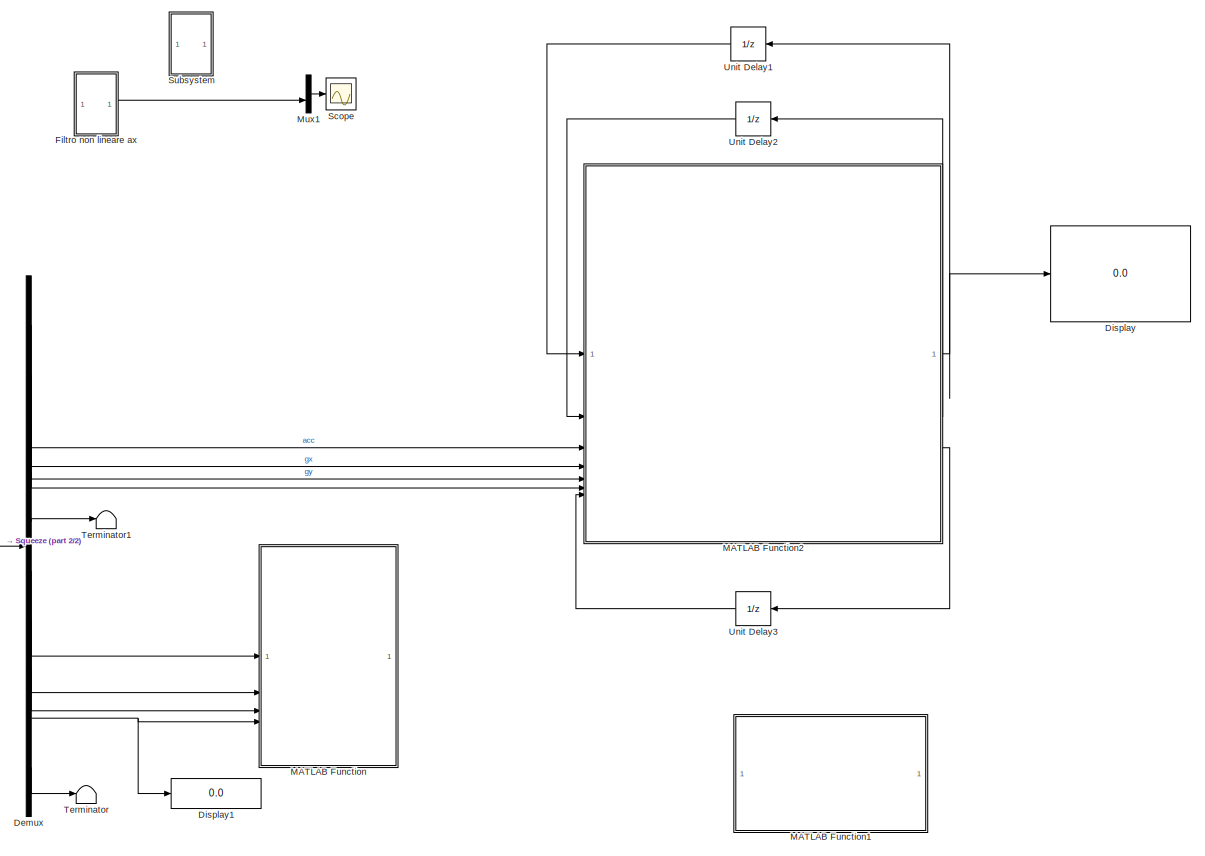
[diagram: root canvas - part 1/2, right side, full height]
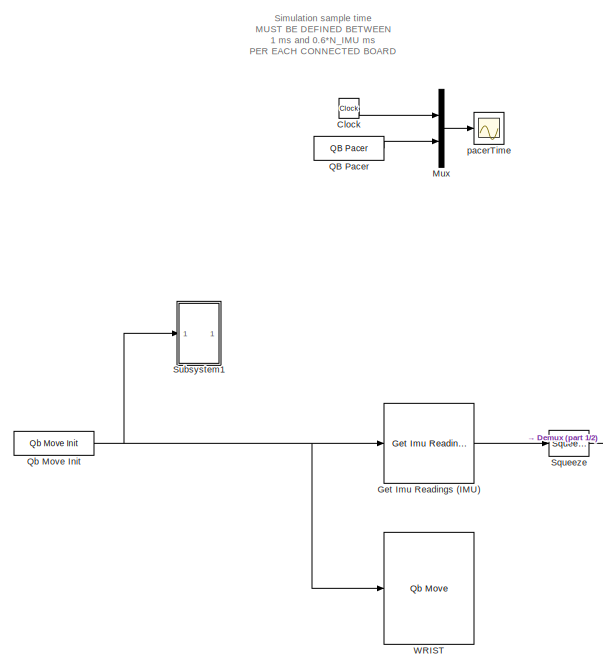
[diagram: root canvas - part 2/2, left side, full height]
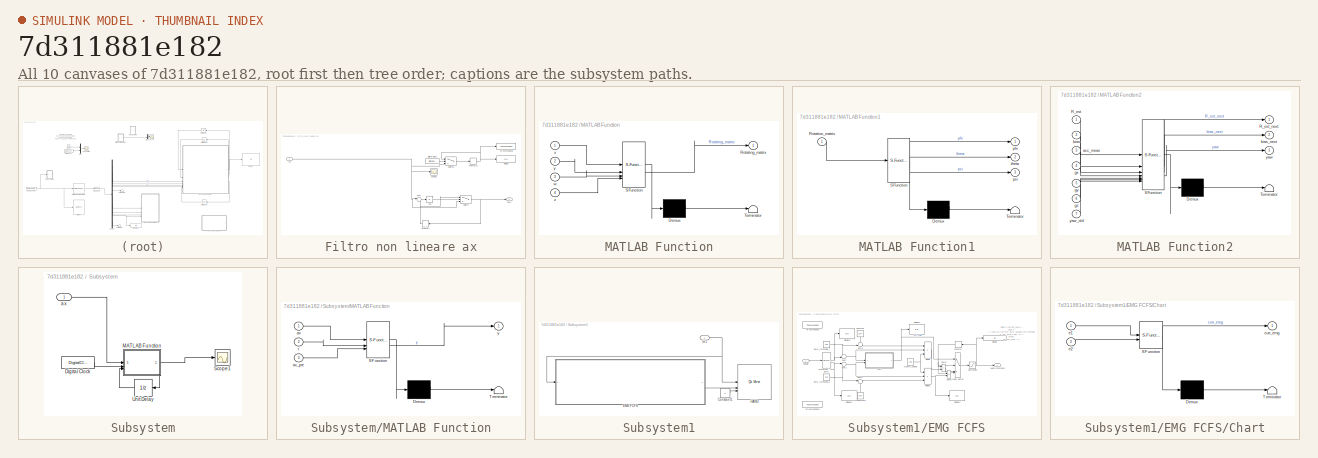
[diagram: thumbnail index - all 10 canvases of the model, root first then tree order]
MODEL slx_7d311881e182
KIND model
CONFIG AbsTol = auto
CONFIG EnableMultiTasking = off
CONFIG FixedStep = auto
CONFIG MaxStep = auto
CONFIG MinStep = auto
CONFIG RelTol = 1e-3
CONFIG SampleTimeConstraint = Unconstrained
CONFIG SolverName = VariableStepAuto
CONFIG StartFcn = model_params
CONFIG StartTime = 0.0
CONFIG StopTime = inf
WORKSPACE source: mxarray member
WORKSPACE ax_pre_init = 7
BLOCK [Clock] Clock
BLOCK [Demux] Demux
  Outputs = [3 1 1 1 3 1 1 1 1 1]
BLOCK [Display] Display
  Commented = on
  Decimation = 1
BLOCK [Display] Display1
  Decimation = 1
BLOCK [SubSystem] Filtro non lineare ax
  Commented = on
BLOCK [Abs] Filtro non lineare ax/Abs
  SaturateOnIntegerOverflow = off
BLOCK [DigitalClock] Filtro non lineare ax/Digital Clock
BLOCK [Display] Filtro non lineare ax/Display
  Decimation = 1
BLOCK [Inport] Filtro non lineare ax/In1
BLOCK [Memory] Filtro non lineare ax/Memory
  InitialCondition = ax_pre_init
BLOCK [Memory] Filtro non lineare ax/Memory1
BLOCK [Outport] Filtro non lineare ax/Out1
BLOCK [Scope] Filtro non lineare ax/Scope1
  Floating = off
  NumInputPorts = 1
  ScopeSpecificationString = Simulink.scopes.TimeScopeBlockCfg('CurrentConfiguration', extmgr.ConfigurationSet(extmgr.Configuration('Core','General UI',true),extmgr.Configuration('Core','Source UI',true),extmgr.Configuration('Sources','WiredSimulink',true,'DataLoggingVariableName','ScopeData2'),extmgr.Configuration('Visuals','Time Domain',true,'SerializedDisplays',{struct('MinYLimReal','-0.90111','MaxYLimReal','8.349','YLabel...<+1365ch>
BLOCK [Sum] Filtro non lineare ax/Sum
  Inputs = |+-
BLOCK [Switch] Filtro non lineare ax/Switch
  Criteria = u2 > Threshold
  InputSameDT = off
  SaturateOnIntegerOverflow = off
  Threshold = soglia_nonlin
BLOCK [Switch] Filtro non lineare ax/Switch1
  Criteria = u2 > Threshold
  InputSameDT = off
  SaturateOnIntegerOverflow = off
BLOCK [ToWorkspace] Filtro non lineare ax/To Workspace
  FixptAsFi = on
  MaxDataPoints = inf
  SampleTime = -1
  SaveFormat = Timeseries
  VariableName = ax_pre_init
BLOCK [Reference] Get Imu Readings (IMU)  REF=CP_library/Get Imu Readings (IMU)
  SourceBlock = CP_library/Get Imu Readings (IMU)
  SourceProductName = Centro Piaggio Library
  SourceType = qb get imu reading
BLOCK [SubSystem] MATLAB Function
  ErrorFcn = Stateflow.Translate.translate
  PermitHierarchicalResolution = ExplicitOnly
  SFBlockType = MATLAB Function
  TreatAsAtomicUnit = on
BLOCK [Demux] MATLAB Function/ Demux 
  Outputs = 1
BLOCK [S-Function] MATLAB Function/ SFunction 
  EnableBusSupport = on
  FunctionName = sf_sfun
  PortCounts = [4 2]
  SFcnIsStateOwnerBlock = off
  SFunctionDeploymentMode = off
  Tag = Stateflow S-Function 1
BLOCK [Terminator] MATLAB Function/ Terminator 
BLOCK [Outport] MATLAB Function/Rotating_matrix
BLOCK [Inport] MATLAB Function/w
  Port = 3
BLOCK [Inport] MATLAB Function/x
BLOCK [Inport] MATLAB Function/y
  Port = 2
BLOCK [Inport] MATLAB Function/z
  Port = 4
BLOCK [SubSystem] MATLAB Function1
  ErrorFcn = Stateflow.Translate.translate
  PermitHierarchicalResolution = ExplicitOnly
  SFBlockType = MATLAB Function
  TreatAsAtomicUnit = on
BLOCK [Demux] MATLAB Function1/ Demux 
  Outputs = 1
BLOCK [S-Function] MATLAB Function1/ SFunction 
  EnableBusSupport = off
  FunctionName = sf_sfun
  PortCounts = [1 4]
  SFcnIsStateOwnerBlock = off
  SFunctionDeploymentMode = off
  Tag = Stateflow S-Function 5
BLOCK [Terminator] MATLAB Function1/ Terminator 
BLOCK [Inport] MATLAB Function1/Rotation_matrix
BLOCK [Outport] MATLAB Function1/phi
BLOCK [Outport] MATLAB Function1/psi
  Port = 3
BLOCK [Outport] MATLAB Function1/theta
  Port = 2
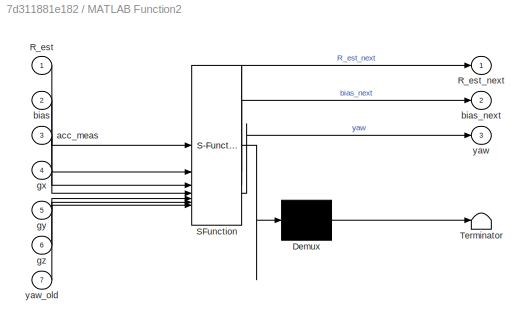
BLOCK [SubSystem] MATLAB Function2
  Commented = on
  ErrorFcn = Stateflow.Translate.translate
  PermitHierarchicalResolution = ExplicitOnly
  SFBlockType = MATLAB Function
  TreatAsAtomicUnit = on
BLOCK [Demux] MATLAB Function2/ Demux 
  Outputs = 1
BLOCK [S-Function] MATLAB Function2/ SFunction 
  EnableBusSupport = on
  FunctionName = sf_sfun
  PortCounts = [7 4]
  SFcnIsStateOwnerBlock = off
  SFunctionDeploymentMode = off
  Tag = Stateflow S-Function 4
BLOCK [Terminator] MATLAB Function2/ Terminator 
BLOCK [Inport] MATLAB Function2/R_est
BLOCK [Outport] MATLAB Function2/R_est_next
BLOCK [Inport] MATLAB Function2/acc_meas
  Port = 3
BLOCK [Inport] MATLAB Function2/bias
  Port = 2
BLOCK [Outport] MATLAB Function2/bias_next
  Port = 2
BLOCK [Inport] MATLAB Function2/gx
  Port = 4
BLOCK [Inport] MATLAB Function2/gy
  Port = 5
BLOCK [Inport] MATLAB Function2/gz
  Port = 6
BLOCK [Outport] MATLAB Function2/yaw
  Port = 3
BLOCK [Inport] MATLAB Function2/yaw_old
  Port = 7
BLOCK [Mux] Mux
  DisplayOption = bar
  Inputs = 2
BLOCK [Mux] Mux1
  Commented = on
  DisplayOption = bar
  Inputs = 2
BLOCK [Reference] QB Pacer  REF=QB_pacer_lib/QB Pacer
  SourceBlock = QB_pacer_lib/QB Pacer
  SourceProductName = QB Pacer
  SourceType = RealTime_Pacer
BLOCK [Reference] Qb Move Init  REF=qbmove_library/Qb Move Init
  NameLocation = top
  SourceBlock = qbmove_library/Qb Move Init
  SourceProductName = Qb Move Library
  SourceType = qb Init - ISS
BLOCK [Scope] Scope
  Commented = on
  Floating = off
  NumInputPorts = 1
  ScopeSpecificationString = Simulink.scopes.TimeScopeBlockCfg('CurrentConfiguration', extmgr.ConfigurationSet(extmgr.Configuration('Core','General UI',true),extmgr.Configuration('Core','Source UI',true),extmgr.Configuration('Sources','WiredSimulink',true,'DataLoggingVariableName','ScopeData1'),extmgr.Configuration('Visuals','Time Domain',true,'SerializedDisplays',{struct('MinYLimReal','-64.96504','MaxYLimReal','32.45289','YL...<+1507ch>
BLOCK [Squeeze] Squeeze
BLOCK [SubSystem] Subsystem
  Commented = on
BLOCK [DigitalClock] Subsystem/Digital Clock
BLOCK [SubSystem] Subsystem/MATLAB Function
  ErrorFcn = Stateflow.Translate.translate
  PermitHierarchicalResolution = ExplicitOnly
  SFBlockType = MATLAB Function
  TreatAsAtomicUnit = on
BLOCK [Demux] Subsystem/MATLAB Function/ Demux 
  Outputs = 1
BLOCK [S-Function] Subsystem/MATLAB Function/ SFunction 
  EnableBusSupport = on
  FunctionName = sf_sfun
  PortCounts = [3 2]
  SFcnIsStateOwnerBlock = off
  SFunctionDeploymentMode = off
  Tag = Stateflow S-Function 2
BLOCK [Terminator] Subsystem/MATLAB Function/ Terminator 
BLOCK [Inport] Subsystem/MATLAB Function/ax
BLOCK [Inport] Subsystem/MATLAB Function/ax_pre
  Port = 3
BLOCK [Inport] Subsystem/MATLAB Function/t
  Port = 2
BLOCK [Outport] Subsystem/MATLAB Function/y
BLOCK [Scope] Subsystem/Scope1
  Floating = off
  NumInputPorts = 1
  ScopeSpecificationString = Simulink.scopes.TimeScopeBlockCfg('CurrentConfiguration', extmgr.ConfigurationSet(extmgr.Configuration('Core','General UI',true),extmgr.Configuration('Core','Source UI',true),extmgr.Configuration('Sources','WiredSimulink',true,'DataLoggingVariableName','ScopeData3'),extmgr.Configuration('Visuals','Time Domain',true,'SerializedDisplays',{struct('MinYLimReal','-1.50464','MaxYLimReal','-1.22976','YLa...<+1407ch>
BLOCK [UnitDelay] Subsystem/Unit Delay
  HasFrameUpgradeWarning = on
  SampleTime = -1
BLOCK [Inport] Subsystem/ax
BLOCK [SubSystem] Subsystem1
  Commented = on
BLOCK [Constant] Subsystem1/Constant1
  Value = 0
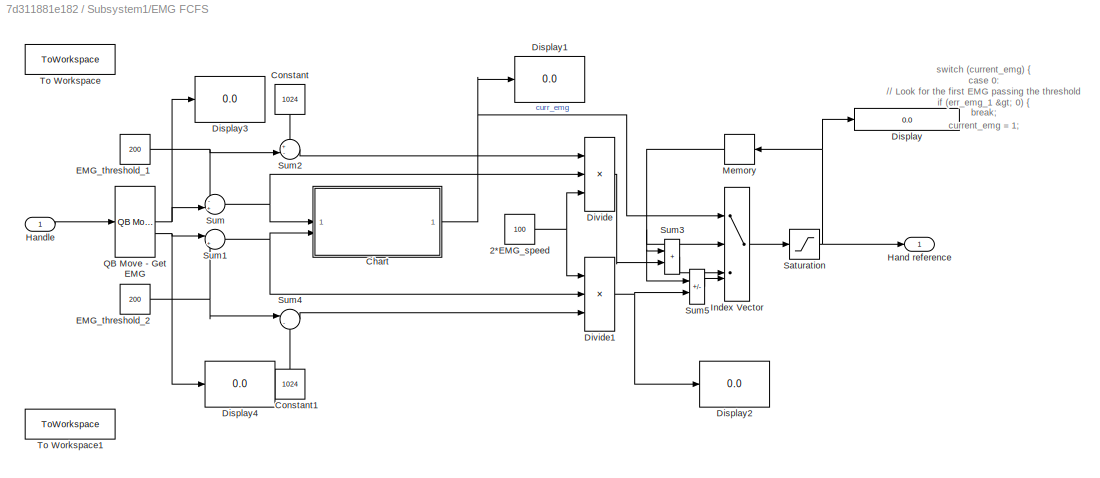
BLOCK [SubSystem] Subsystem1/EMG FCFS
BLOCK [Constant] Subsystem1/EMG FCFS/2*EMG_speed
  Value = 100
BLOCK [SubSystem] Subsystem1/EMG FCFS/Chart
  ErrorFcn = Stateflow.Translate.translate
  PermitHierarchicalResolution = ExplicitOnly
  SFBlockType = Chart
  TreatAsAtomicUnit = on
BLOCK [Demux] Subsystem1/EMG FCFS/Chart/ Demux 
  Outputs = 1
BLOCK [S-Function] Subsystem1/EMG FCFS/Chart/ SFunction 
  EnableBusSupport = on
  FunctionName = sf_sfun
  PortCounts = [2 2]
  SFcnIsStateOwnerBlock = off
  SFunctionDeploymentMode = off
  Tag = Stateflow S-Function 3
BLOCK [Terminator] Subsystem1/EMG FCFS/Chart/ Terminator 
BLOCK [Outport] Subsystem1/EMG FCFS/Chart/curr_emg
BLOCK [Inport] Subsystem1/EMG FCFS/Chart/e1
BLOCK [Inport] Subsystem1/EMG FCFS/Chart/e2
  Port = 2
BLOCK [Constant] Subsystem1/EMG FCFS/Constant
  NameLocation = left
  Value = 1024
BLOCK [Constant] Subsystem1/EMG FCFS/Constant1
  NameLocation = right
  Value = 1024
BLOCK [Display] Subsystem1/EMG FCFS/Display
  Decimation = 1
  Format = decimal (Stored Integer)
BLOCK [Display] Subsystem1/EMG FCFS/Display1
  Decimation = 1
BLOCK [Display] Subsystem1/EMG FCFS/Display2
  Decimation = 1
BLOCK [Display] Subsystem1/EMG FCFS/Display3
  Decimation = 1
BLOCK [Display] Subsystem1/EMG FCFS/Display4
  Decimation = 1
BLOCK [Product] Subsystem1/EMG FCFS/Divide
  Inputs = /**
BLOCK [Product] Subsystem1/EMG FCFS/Divide1
  Inputs = **/
BLOCK [Constant] Subsystem1/EMG FCFS/EMG_threshold_1
  Value = 200
BLOCK [Constant] Subsystem1/EMG FCFS/EMG_threshold_2
  Value = 200
BLOCK [Outport] Subsystem1/EMG FCFS/Hand reference
BLOCK [Inport] Subsystem1/EMG FCFS/Handle
BLOCK [MultiPortSwitch] Subsystem1/EMG FCFS/Index Vector
  DataPortOrder = Zero-based contiguous
  InputSameDT = off
  SaturateOnIntegerOverflow = off
  zeroidx = on
BLOCK [Memory] Subsystem1/EMG FCFS/Memory
BLOCK [Reference] Subsystem1/EMG FCFS/QB Move - Get EMG  REF=qbmove_library/QB Move - Get EMG
  SourceBlock = qbmove_library/QB Move - Get EMG
  SourceProductName = Qb Move Library
  SourceType = qb move
BLOCK [Saturate] Subsystem1/EMG FCFS/Saturation
  LowerLimit = 0
  UpperLimit = 19000
BLOCK [Sum] Subsystem1/EMG FCFS/Sum
  Inputs = -+|
BLOCK [Sum] Subsystem1/EMG FCFS/Sum1
  Inputs = |+-
BLOCK [Sum] Subsystem1/EMG FCFS/Sum2
  Inputs = +-|
BLOCK [Sum] Subsystem1/EMG FCFS/Sum3
  IconShape = rectangular
BLOCK [Sum] Subsystem1/EMG FCFS/Sum4
  Inputs = |-+
BLOCK [Sum] Subsystem1/EMG FCFS/Sum5
  IconShape = rectangular
  Inputs = +-
BLOCK [ToWorkspace] Subsystem1/EMG FCFS/To Workspace
  Commented = on
  FixptAsFi = on
  MaxDataPoints = inf
  SampleTime = -1
  SaveFormat = Timeseries
  VariableName = simout_EMG1
BLOCK [ToWorkspace] Subsystem1/EMG FCFS/To Workspace1
  Commented = on
  FixptAsFi = on
  MaxDataPoints = inf
  SampleTime = -1
  SaveFormat = Timeseries
  VariableName = simout_EMG2
BLOCK [Reference] Subsystem1/HAND  REF=qbmove_library/Qb Move
  SourceBlock = qbmove_library/Qb Move
  SourceProductName = Qb Move Library
  SourceType = qb move
BLOCK [Inport] Subsystem1/In1
BLOCK [Terminator] Terminator
BLOCK [Terminator] Terminator1
BLOCK [UnitDelay] Unit Delay1
  Commented = on
  HasFrameUpgradeWarning = on
  SampleTime = -1
BLOCK [UnitDelay] Unit Delay2
  Commented = on
  HasFrameUpgradeWarning = on
  SampleTime = -1
BLOCK [UnitDelay] Unit Delay3
  Commented = on
  HasFrameUpgradeWarning = on
  SampleTime = -1
BLOCK [Reference] WRIST  REF=qbmove_library/Qb Move
  Commented = on
  SourceBlock = qbmove_library/Qb Move
  SourceProductName = Qb Move Library
  SourceType = qb move
BLOCK [Scope] pacerTime
  Floating = off
  NumInputPorts = 1
  ScopeSpecificationString = Simulink.scopes.TimeScopeBlockCfg('CurrentConfiguration', extmgr.ConfigurationSet(extmgr.Configuration('Core','General UI',true),extmgr.Configuration('Core','Source UI',true),extmgr.Configuration('Sources','WiredSimulink',true,'DataLoggingSaveFormat','Array','DataLoggingDecimation','1','DataLoggingDecimateData',true),extmgr.Configuration('Visuals','Time Domain',true,'SerializedDisplays',{struct('M...<+1492ch>
ANNOTATION (root): Simulation sample time MUST BE DEFINED BETWEEN 1 ms and 0.6*N_IMU ms PER EACH CONNECTED BOARD
ANNOTATION Subsystem1/EMG FCFS: switch (current_emg) { case 0: // Look for the first EMG passing the threshold if (err_emg_1 > 0) { current_emg = 1; break; } if (err_emg_2 > 0) { current_emg = 2; break; } break; case 1: // EMG 1 is first if (err_emg_1 < 0) { current_emg = 0; break; } g_ref.pos[0] += (err_emg_1 * g_mem.emg_speed * 2) / (1024 - c_mem.emg_threshold[0]); break; case 2: // EMG 2 is first if (err_emg_2 < 0) { current_...<+127ch>
LINE Clock:1 -> Mux:1
LINE Demux:1 -> MATLAB Function2:3
LINE Demux:10 -> Terminator:1
LINE Demux:2 -> MATLAB Function2:4
LINE Demux:3 -> MATLAB Function2:5
LINE Demux:4 -> MATLAB Function2:6
LINE Demux:5 -> Terminator1:1
LINE Demux:6 -> MATLAB Function:1
LINE Demux:7 -> MATLAB Function:2
LINE Demux:8 -> MATLAB Function:3
NET Demux:9 -> Display1:1, MATLAB Function:4
LINE Filtro non lineare ax/Abs:1 -> Filtro non lineare ax/Switch:2
LINE Filtro non lineare ax/Digital Clock:1 -> Filtro non lineare ax/Switch1:2
NET Filtro non lineare ax/In1:1 -> Filtro non lineare ax/Scope1:1, Filtro non lineare ax/Sum:1, Filtro non lineare ax/Switch1:3, Filtro non lineare ax/Switch:3
NET Filtro non lineare ax/Memory1:1 -> Filtro non lineare ax/Display:1, Filtro non lineare ax/Switch1:1, Filtro non lineare ax/To Workspace:1
NET Filtro non lineare ax/Memory:1 -> Filtro non lineare ax/Sum:2, Filtro non lineare ax/Switch:1
LINE Filtro non lineare ax/Sum:1 -> Filtro non lineare ax/Abs:1
LINE Filtro non lineare ax/Switch1:1 -> Filtro non lineare ax/Memory1:1
NET Filtro non lineare ax/Switch:1 -> Filtro non lineare ax/Memory:1, Filtro non lineare ax/Out1:1
LINE Filtro non lineare ax:1 -> Mux1:2
LINE Get Imu Readings (IMU):1 -> Squeeze:1
NET MATLAB Function2:1 -> Display:1, Unit Delay1:1
LINE MATLAB Function2:2 -> Unit Delay2:1
LINE MATLAB Function2:3 -> Unit Delay3:1
LINE Mux1:1 -> Scope:1
LINE Mux:1 -> pacerTime:1
LINE QB Pacer:1 -> Mux:2
NET Qb Move Init:1 -> Get Imu Readings (IMU):1, Subsystem1:1, WRIST:1
LINE Squeeze:1 -> Demux:1
LINE Subsystem/Digital Clock:1 -> Subsystem/MATLAB Function:2
NET Subsystem/MATLAB Function:1 -> Subsystem/Scope1:1, Subsystem/Unit Delay:1
LINE Subsystem/Unit Delay:1 -> Subsystem/MATLAB Function:3
LINE Subsystem/ax:1 -> Subsystem/MATLAB Function:1
LINE Subsystem1/Constant1:1 -> Subsystem1/HAND:3
NET Subsystem1/EMG FCFS/2*EMG_speed:1 -> Subsystem1/EMG FCFS/Divide1:1, Subsystem1/EMG FCFS/Divide:3
NET Subsystem1/EMG FCFS/Chart:1 -> Subsystem1/EMG FCFS/Display1:1, Subsystem1/EMG FCFS/Index Vector:1
LINE Subsystem1/EMG FCFS/Constant1:1 -> Subsystem1/EMG FCFS/Sum4:2
LINE Subsystem1/EMG FCFS/Constant:1 -> Subsystem1/EMG FCFS/Sum2:1
NET Subsystem1/EMG FCFS/Divide1:1 -> Subsystem1/EMG FCFS/Display2:1, Subsystem1/EMG FCFS/Sum5:2
LINE Subsystem1/EMG FCFS/Divide:1 -> Subsystem1/EMG FCFS/Sum3:2
NET Subsystem1/EMG FCFS/EMG_threshold_1:1 -> Subsystem1/EMG FCFS/Sum2:2, Subsystem1/EMG FCFS/Sum:1
NET Subsystem1/EMG FCFS/EMG_threshold_2:1 -> Subsystem1/EMG FCFS/Sum1:2, Subsystem1/EMG FCFS/Sum4:1
LINE Subsystem1/EMG FCFS/Handle:1 -> Subsystem1/EMG FCFS/QB Move - Get EMG:1
LINE Subsystem1/EMG FCFS/Index Vector:1 -> Subsystem1/EMG FCFS/Saturation:1
NET Subsystem1/EMG FCFS/Memory:1 -> Subsystem1/EMG FCFS/Index Vector:2, Subsystem1/EMG FCFS/Sum3:1, Subsystem1/EMG FCFS/Sum5:1
NET Subsystem1/EMG FCFS/QB Move - Get EMG:1 -> Subsystem1/EMG FCFS/Display3:1, Subsystem1/EMG FCFS/Sum:2
NET Subsystem1/EMG FCFS/QB Move - Get EMG:2 -> Subsystem1/EMG FCFS/Display4:1, Subsystem1/EMG FCFS/Sum1:1
NET Subsystem1/EMG FCFS/Saturation:1 -> Subsystem1/EMG FCFS/Display:1, Subsystem1/EMG FCFS/Hand reference:1, Subsystem1/EMG FCFS/Memory:1
NET Subsystem1/EMG FCFS/Sum1:1 -> Subsystem1/EMG FCFS/Chart:2, Subsystem1/EMG FCFS/Divide1:2
LINE Subsystem1/EMG FCFS/Sum2:1 -> Subsystem1/EMG FCFS/Divide:1
LINE Subsystem1/EMG FCFS/Sum3:1 -> Subsystem1/EMG FCFS/Index Vector:3
LINE Subsystem1/EMG FCFS/Sum4:1 -> Subsystem1/EMG FCFS/Divide1:3
LINE Subsystem1/EMG FCFS/Sum5:1 -> Subsystem1/EMG FCFS/Index Vector:4
NET Subsystem1/EMG FCFS/Sum:1 -> Subsystem1/EMG FCFS/Chart:1, Subsystem1/EMG FCFS/Divide:2
LINE Subsystem1/EMG FCFS:1 -> Subsystem1/HAND:2
NET Subsystem1/In1:1 -> Subsystem1/EMG FCFS:1, Subsystem1/HAND:1
LINE Unit Delay1:1 -> MATLAB Function2:1
LINE Unit Delay2:1 -> MATLAB Function2:2
LINE Unit Delay3:1 -> MATLAB Function2:7
note: NET lines group one-source signal fan-out (src -> all destinations, sorted); 1:1 wires keep LINE
CHART MATLAB Function states=1 transitions=1
  STATE_LABEL 'eML_blk_kernel()'
  STATE_LABEL 'SCRIPT:\nfunction Rotating_matrix = Quat2rot(x , y , w ,z)\n\nRotating_matrix = [(1 - 2*(y^2 + z^2)) , 2*(x*y - w*z) , 2*(w*y + x*z);\n                    2*(x*y + w*z) , (1 - 2*(x^2 + z^2)) , 2*(y*z - w*x);\n                    2*(x*z - w*y) , 2*(w*x + y*z) , (1 - 2*(x^2 + y^2))];\nend'
CHART Subsystem/MATLAB Function states=1 transitions=1
  STATE_LABEL 'eML_blk_kernel()'
  STATE_LABEL 'SCRIPT:\nfunction y = fcn(ax , t, ax_pre)\n\nif t < 1\n    ax_pre = ax;\nend\n\n\nif abs(ax-ax_pre)> 2\n    y = ax_pre;\nelse \n    y = ax;\n\nend\n\nax_pre = ax;\n\n   \n'
CHART Subsystem1/EMG FCFS/Chart states=3 transitions=5
  STATE_LABEL 'State0\nentry: curr_emg = 0;'
  STATE_LABEL 'State1\nentry: curr_emg = 1;'
  STATE_LABEL 'State2\nentry: curr_emg = 2;'
CHART MATLAB Function2 states=1 transitions=1
  STATE_LABEL 'eML_blk_kernel()'
  STATE_LABEL "SCRIPT:\nfunction [ R_est_next, bias_next, yaw] = explicit_filter(  R_est , bias , acc_meas, gx, gy, gz, yaw_old)  \n\n    omega_meas = [gx ; gy ; gz];\n    \n    k_corr = 0.5; \n    K_bias = diag([0.1 0.1 0.36]);\n    K_acc = 1; %[s^4 / rad^2]\n    sample_time = 0.01; % poi c'è da mettere la cosa dei parametri\n   \n    inertial_dir = [0; 0; 9.81]; %[3 x 1]\n    acc_est = R_est' * inertial_dir; %[3 x 1]\n\n  ...<+1716ch>"
CHART MATLAB Function1 states=1 transitions=1
  STATE_LABEL 'eML_blk_kernel()'
  STATE_LABEL "SCRIPT:\nfunction [phi , theta , psi] = Rot2eul(Rotation_matrix)\n\n\n% Verifico che la matrice R sia 3x3\n\nassert(all(size(R) == [3 3]), 'La matrice di rotazione deve essere 3x3');\n\n% Calcolo dell'angolo theta\n\nR31 = R(3,1);\n\nif R31 ~= 1 && R31 ~= -1\n    theta1 = -asin(R31);\n    theta2 = pi - theta1;\nend\n\n%%\n\ncos_theta1 = cos(theta1);\ncos_theta2 = cos(theta2);\n    \nif cos(theta1) ~= 0\n    psi1 = atan2...<+592ch>"
CHART  states=0 transitions=0
CHART  states=0 transitions=0
CHART  states=0 transitions=0
CHART  states=0 transitions=0
CHART  states=0 transitions=0
